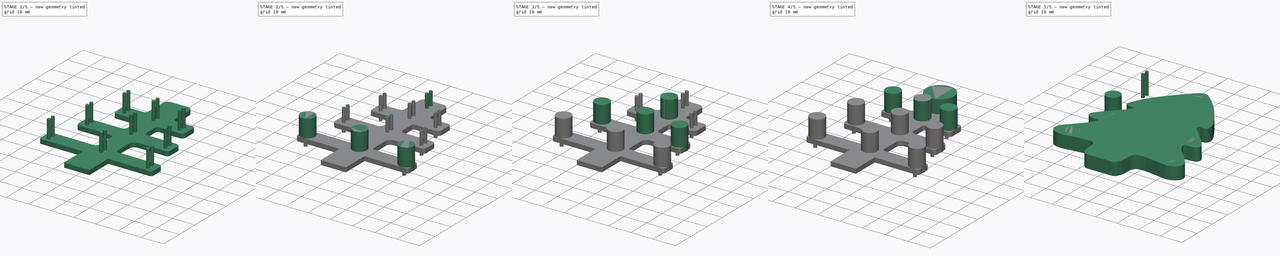
[diagram: build sequence overview — one tinted view per stage of 5, left to right]
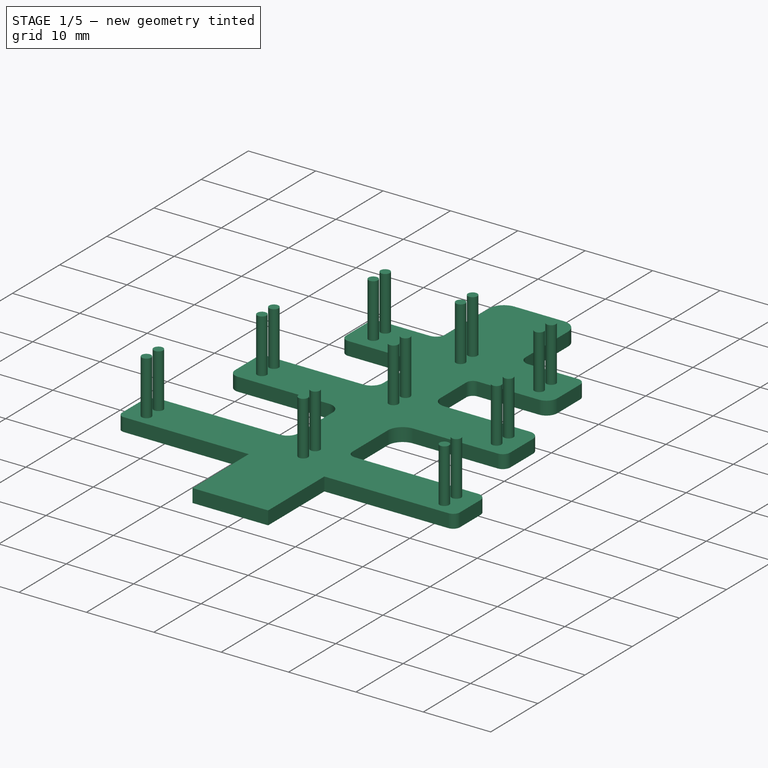
[diagram: stage 1 of 5 — iso view after this stage's code; geometry added in this stage tinted green]
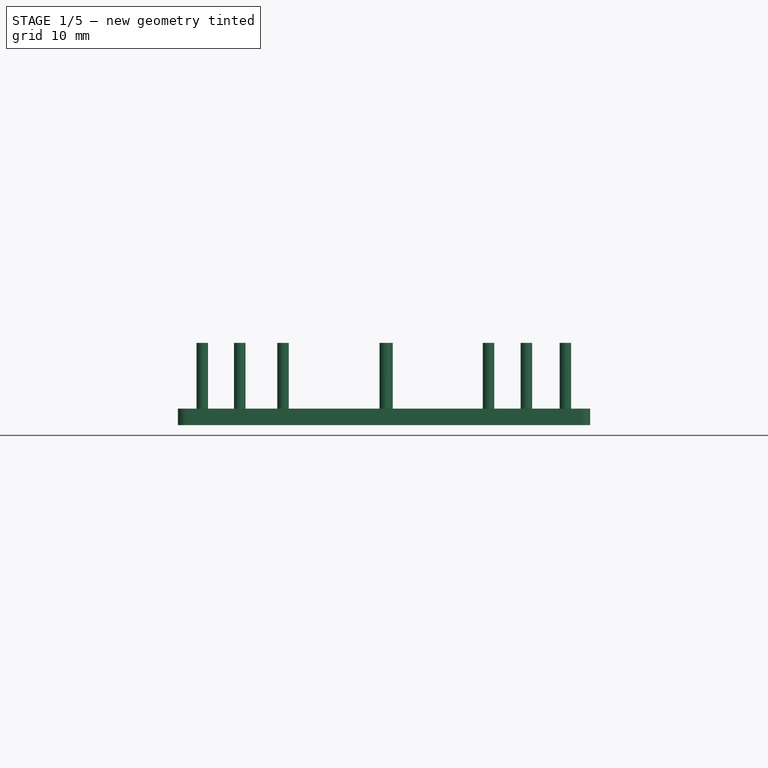
[diagram: stage 1 of 5 — front view after this stage's code; geometry added in this stage tinted green]
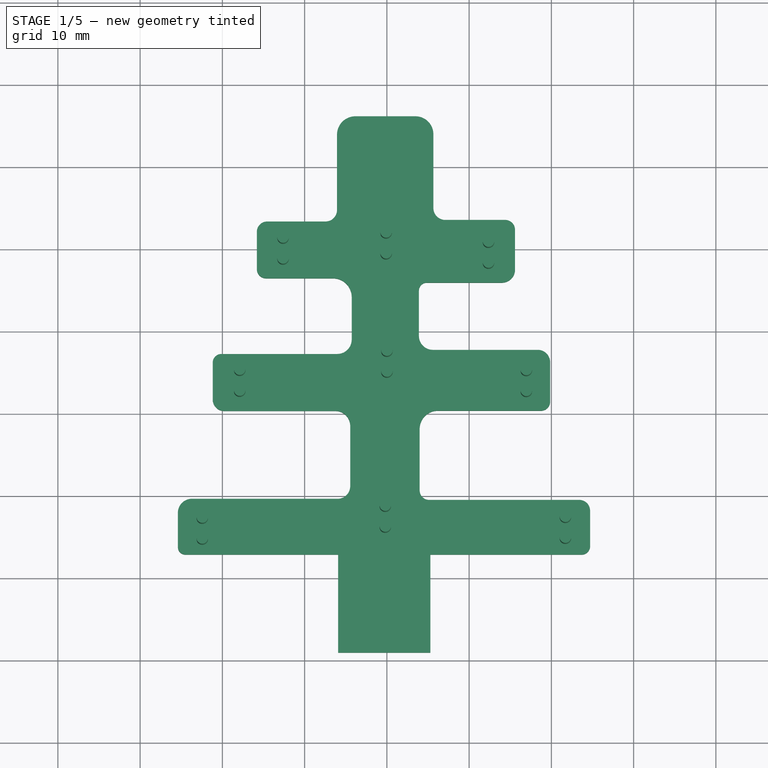
[diagram: stage 1 of 5 — top view after this stage's code; geometry added in this stage tinted green]
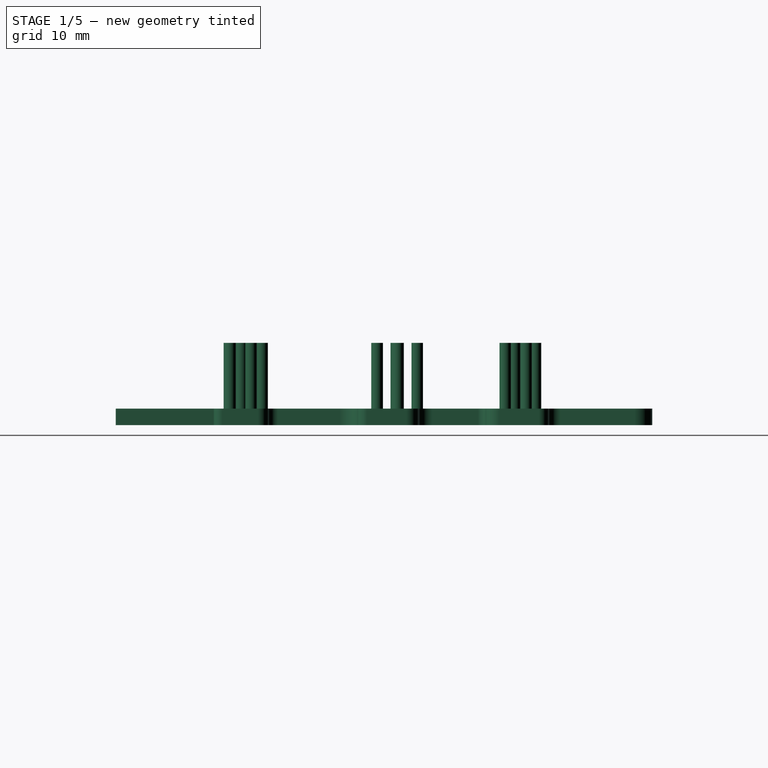
[diagram: stage 1 of 5 — right view after this stage's code; geometry added in this stage tinted green]
FCSTD DOCUMENT  (FreeCAD 0.15R4671 (Git))
Label: xmasTree_v0-2
License: All rights reserved
LicenseURL: http://en.wikipedia.org/wiki/All_rights_reserved
objects: Part::Extrusion×35, Sketcher::SketchObject×24, Part::MultiFuse×13, Part::Cut×3, Part::Feature×2, PartDesign::Pad×1
note: 79 computed .brp shape members not serialized (recipe doc carries the construction recipe); baked Part::Feature solids carry a one-line shape summary decoded from their .brp

FEATURE [Sketcher::SketchObject] Sketch025  label="Hole_Sketch002"
  Placement = pos=(-24,0,0) rot=(0,0,1;0rad)
  sketch-geometry (3):
    g0: Circle CenterX=29.1596 CenterY=67.9117 CenterZ=0 NormalX=0 NormalY=0 NormalZ=1 Radius=0.7
    g1: Circle CenterX=29.1596 CenterY=65.3717 CenterZ=0 NormalX=0 NormalY=0 NormalZ=1 Radius=0.7
    g2: LineSegment [constr] StartX=29.1596 StartY=68.4121 StartZ=0 EndX=29.1596 EndY=65.287 EndZ=0
  constraints (6):
    c: Radius(g0) = 0.7
    c: Equal(g0,g1)
    c: Vertical(g2)
    c: DistanceY(g1,g0) = 2.54
    c: PointOnObject(g0,g2)
    c: PointOnObject(g1,g2)
FEATURE [Part::Extrusion] Extrude026  label="Hole_002"
  Base = -> Sketch025
  Dir = (0,0,10)
  Placement = pos=(12.22,-16.55,0) rot=(0,0,1;0rad)
  Solid = true
FEATURE [Sketcher::SketchObject] Sketch026  label="Hole_Sketch003"
  Placement = pos=(-24,0,0) rot=(0,0,1;0rad)
  sketch-geometry (3):
    g0: Circle CenterX=29.1596 CenterY=67.9117 CenterZ=0 NormalX=0 NormalY=0 NormalZ=1 Radius=0.7
    g1: Circle CenterX=29.1596 CenterY=65.3717 CenterZ=0 NormalX=0 NormalY=0 NormalZ=1 Radius=0.7
    g2: LineSegment [constr] StartX=29.1596 StartY=68.4121 StartZ=0 EndX=29.1596 EndY=65.287 EndZ=0
  constraints (6):
    c: Radius(g0) = 0.7
    c: Equal(g0,g1)
    c: Vertical(g2)
    c: DistanceY(g1,g0) = 2.54
    c: PointOnObject(g0,g2)
    c: PointOnObject(g1,g2)
FEATURE [Part::Extrusion] Extrude027  label="Hole_003"
  Base = -> Sketch026
  Dir = (0,0,10)
  Placement = pos=(24.75,-15.92,0) rot=(0,0,1;0rad)
  Solid = true
FEATURE [Sketcher::SketchObject] Sketch027  label="Hole_Sketch004"
  Placement = pos=(-24,0,0) rot=(0,0,1;0rad)
  sketch-geometry (3):
    g0: Circle CenterX=29.1596 CenterY=67.9117 CenterZ=0 NormalX=0 NormalY=0 NormalZ=1 Radius=0.7
    g1: Circle CenterX=29.1596 CenterY=65.3717 CenterZ=0 NormalX=0 NormalY=0 NormalZ=1 Radius=0.7
    g2: LineSegment [constr] StartX=29.1596 StartY=68.4121 StartZ=0 EndX=29.1596 EndY=65.287 EndZ=0
  constraints (6):
    c: Radius(g0) = 0.7
    c: Equal(g0,g1)
    c: Vertical(g2)
    c: DistanceY(g1,g0) = 2.54
    c: PointOnObject(g0,g2)
    c: PointOnObject(g1,g2)
FEATURE [Part::Extrusion] Extrude028  label="Hole_004"
  Base = -> Sketch027
  Dir = (0,0,10)
  Placement = pos=(37.2,-17.05,0) rot=(0,0,1;0rad)
  Solid = true
FEATURE [Sketcher::SketchObject] Sketch028  label="Hole_Sketch005"
  Placement = pos=(-24,0,0) rot=(0,0,1;0rad)
  sketch-geometry (3):
    g0: Circle CenterX=29.1596 CenterY=67.9117 CenterZ=0 NormalX=0 NormalY=0 NormalZ=1 Radius=0.7
    g1: Circle CenterX=29.1596 CenterY=65.3717 CenterZ=0 NormalX=0 NormalY=0 NormalZ=1 Radius=0.7
    g2: LineSegment [constr] StartX=29.1596 StartY=68.4121 StartZ=0 EndX=29.1596 EndY=65.287 EndZ=0
  constraints (6):
    c: Radius(g0) = 0.7
    c: Equal(g0,g1)
    c: Vertical(g2)
    c: DistanceY(g1,g0) = 2.54
    c: PointOnObject(g0,g2)
    c: PointOnObject(g1,g2)
FEATURE [Part::Extrusion] Extrude029  label="Hole_005"
  Base = -> Sketch028
  Dir = (0,0,10)
  Placement = pos=(6.95,-32.62,0) rot=(0,0,1;0rad)
  Solid = true
FEATURE [Sketcher::SketchObject] Sketch029  label="Hole_Sketch006"
  Placement = pos=(-24,0,0) rot=(0,0,1;0rad)
  sketch-geometry (3):
    g0: Circle CenterX=29.1596 CenterY=67.9117 CenterZ=0 NormalX=0 NormalY=0 NormalZ=1 Radius=0.7
    g1: Circle CenterX=29.1596 CenterY=65.3717 CenterZ=0 NormalX=0 NormalY=0 NormalZ=1 Radius=0.7
    g2: LineSegment [constr] StartX=29.1596 StartY=68.4121 StartZ=0 EndX=29.1596 EndY=65.287 EndZ=0
  constraints (6):
    c: Radius(g0) = 0.7
    c: Equal(g0,g1)
    c: Vertical(g2)
    c: DistanceY(g1,g0) = 2.54
    c: PointOnObject(g0,g2)
    c: PointOnObject(g1,g2)
FEATURE [Part::Extrusion] Extrude030  label="Hole_006"
  Base = -> Sketch029
  Dir = (0,0,10)
  Placement = pos=(24.85,-30.3,0) rot=(0,0,1;0rad)
  Solid = true
FEATURE [Sketcher::SketchObject] Sketch030  label="Hole_Sketch007"
  Placement = pos=(-24,0,0) rot=(0,0,1;0rad)
  sketch-geometry (3):
    g0: Circle CenterX=29.1596 CenterY=67.9117 CenterZ=0 NormalX=0 NormalY=0 NormalZ=1 Radius=0.7
    g1: Circle CenterX=29.1596 CenterY=65.3717 CenterZ=0 NormalX=0 NormalY=0 NormalZ=1 Radius=0.7
    g2: LineSegment [constr] StartX=29.1596 StartY=68.4121 StartZ=0 EndX=29.1596 EndY=65.287 EndZ=0
  constraints (6):
    c: Radius(g0) = 0.7
    c: Equal(g0,g1)
    c: Vertical(g2)
    c: DistanceY(g1,g0) = 2.54
    c: PointOnObject(g0,g2)
    c: PointOnObject(g1,g2)
FEATURE [Part::Extrusion] Extrude031  label="Hole_007"
  Base = -> Sketch030
  Dir = (0,0,10)
  Placement = pos=(41.8,-32.65,0) rot=(0,0,1;0rad)
  Solid = true
FEATURE [Sketcher::SketchObject] Sketch031  label="Hole_Sketch008"
  Placement = pos=(-24,0,0) rot=(0,0,1;0rad)
  sketch-geometry (3):
    g0: Circle CenterX=29.1596 CenterY=67.9117 CenterZ=0 NormalX=0 NormalY=0 NormalZ=1 Radius=0.7
    g1: Circle CenterX=29.1596 CenterY=65.3717 CenterZ=0 NormalX=0 NormalY=0 NormalZ=1 Radius=0.7
    g2: LineSegment [constr] StartX=29.1596 StartY=68.4121 StartZ=0 EndX=29.1596 EndY=65.287 EndZ=0
  constraints (6):
    c: Radius(g0) = 0.7
    c: Equal(g0,g1)
    c: Vertical(g2)
    c: DistanceY(g1,g0) = 2.54
    c: PointOnObject(g0,g2)
    c: PointOnObject(g1,g2)
FEATURE [Part::Extrusion] Extrude032  label="Hole_008"
  Base = -> Sketch031
  Dir = (0,0,10)
  Placement = pos=(2.4,-50.6,0) rot=(0,0,1;0rad)
  Solid = true
FEATURE [Sketcher::SketchObject] Sketch032  label="Hole_Sketch009"
  Placement = pos=(-24,0,0) rot=(0,0,1;0rad)
  sketch-geometry (3):
    g0: Circle CenterX=29.1596 CenterY=67.9117 CenterZ=0 NormalX=0 NormalY=0 NormalZ=1 Radius=0.7
    g1: Circle CenterX=29.1596 CenterY=65.3717 CenterZ=0 NormalX=0 NormalY=0 NormalZ=1 Radius=0.7
    g2: LineSegment [constr] StartX=29.1596 StartY=68.4121 StartZ=0 EndX=29.1596 EndY=65.287 EndZ=0
  constraints (6):
    c: Radius(g0) = 0.7
    c: Equal(g0,g1)
    c: Vertical(g2)
    c: DistanceY(g1,g0) = 2.54
    c: PointOnObject(g0,g2)
    c: PointOnObject(g1,g2)
FEATURE [Part::Extrusion] Extrude033  label="Hole_009"
  Base = -> Sketch032
  Dir = (0,0,10)
  Placement = pos=(24.65,-49.15,0) rot=(0,0,1;0rad)
  Solid = true
FEATURE [Sketcher::SketchObject] Sketch033  label="Hole_Sketch010"
  Placement = pos=(-24,0,0) rot=(0,0,1;0rad)
  sketch-geometry (3):
    g0: Circle CenterX=29.1596 CenterY=67.9117 CenterZ=0 NormalX=0 NormalY=0 NormalZ=1 Radius=0.7
    g1: Circle CenterX=29.1596 CenterY=65.3717 CenterZ=0 NormalX=0 NormalY=0 NormalZ=1 Radius=0.7
    g2: LineSegment [constr] StartX=29.1596 StartY=68.4121 StartZ=0 EndX=29.1596 EndY=65.287 EndZ=0
  constraints (6):
    c: Radius(g0) = 0.7
    c: Equal(g0,g1)
    c: Vertical(g2)
    c: DistanceY(g1,g0) = 2.54
    c: PointOnObject(g0,g2)
    c: PointOnObject(g1,g2)
FEATURE [Part::Extrusion] Extrude034  label="Hole_010"
  Base = -> Sketch033
  Dir = (0,0,10)
  Placement = pos=(46.55,-50.5,0) rot=(0,0,1;0rad)
  Solid = true
FEATURE [Sketcher::SketchObject] Sketch034  label="Channels-Sketch"
  sketch-geometry (59):
    g0: LineSegment StartX=26.1749 StartY=66.1849 StartZ=0 EndX=33.4814 EndY=66.1849 EndZ=0
    g1: LineSegment StartX=35.654 StartY=64.0124 StartZ=0 EndX=35.654 EndY=58.2006 EndZ=0
    g2: LineSegment StartX=23.9403 StartY=58.356 StartZ=0 EndX=23.9403 EndY=63.9503 EndZ=0
    g3: LineSegment StartX=45.5853 StartY=52.3862 StartZ=0 EndX=45.5853 EndY=47.5555 EndZ=0
    g4: LineSegment StartX=14.1893 StartY=47.6088 StartZ=0 EndX=14.1893 EndY=52.1219 EndZ=0
    g5: LineSegment StartX=49.8535 StartY=36.2721 StartZ=0 EndX=49.8535 EndY=31.4914 EndZ=0
    g6: LineSegment StartX=8.82811 StartY=31.753 StartZ=0 EndX=8.82811 EndY=36.2292 EndZ=0
    g7: LineSegment StartX=54.7112 StartY=18.2239 StartZ=0 EndX=54.7112 EndY=13.9036 EndZ=0
    g8: LineSegment StartX=53.6896 StartY=12.882 StartZ=0 EndX=5.52722 EndY=12.882 EndZ=0
    g9: LineSegment StartX=4.59444 StartY=13.8148 StartZ=0 EndX=4.59444 EndY=17.9805 EndZ=0
    g10: LineSegment StartX=33.7757 StartY=12.882 StartZ=0 EndX=26.3841 EndY=12.882 EndZ=0
    g11: GeomPoint [constr] X=23.962 Y=53.3857 Z=0
    g12: GeomPoint [constr] X=35.3057 Y=52.8433 Z=0
    g13: GeomPoint [constr] X=25.7277 Y=37.2774 Z=0
    g14: GeomPoint [constr] X=33.1808 Y=37.4973 Z=0
    g15: GeomPoint [constr] X=25.7277 Y=37.2774 Z=0
    g16: LineSegment StartX=15.3164 StartY=46.4818 StartZ=0 EndX=23.4544 EndY=46.4818 EndZ=0
    g17: LineSegment StartX=34.8625 StartY=45.9495 StartZ=0 EndX=43.9794 EndY=45.9495 EndZ=0
    g18: GeomPoint [constr] X=35.3057 Y=52.8433 Z=0
    g19: LineSegment StartX=35.654 StartY=58.2006 StartZ=0 EndX=35.654 EndY=55.0413 EndZ=0
    g20: LineSegment StartX=15.4586 StartY=53.3911 StartZ=0 EndX=22.5418 EndY=53.3911 EndZ=0
    g21: LineSegment StartX=23.9403 StartY=54.7896 StartZ=0 EndX=23.9403 EndY=58.356 EndZ=0
    g22: LineSegment StartX=37.1145 StartY=53.5809 StartZ=0 EndX=44.3907 EndY=53.5809 EndZ=0
    g23: LineSegment StartX=9.88207 StartY=37.2832 StartZ=0 EndX=23.975 EndY=37.2832 EndZ=0
    g24: LineSegment StartX=25.7261 StartY=44.21 StartZ=0 EndX=25.7261 EndY=39.0343 EndZ=0
    g25: LineSegment StartX=35.5892 StartY=37.7838 StartZ=0 EndX=48.3418 EndY=37.7838 EndZ=0
    g26: LineSegment StartX=33.8985 StartY=44.9855 StartZ=0 EndX=33.8985 EndY=39.4745 EndZ=0
    g27: LineSegment StartX=10.2291 StartY=30.352 StartZ=0 EndX=23.7333 EndY=30.352 EndZ=0
    g28: LineSegment StartX=36.207 StartY=30.3836 StartZ=0 EndX=48.7457 EndY=30.3836 EndZ=0
    g29: GeomPoint [constr] X=25.9175 Y=18.5864 Z=0
    g30: GeomPoint [constr] X=33.794 Y=18.5864 Z=0
    g31: LineSegment StartX=25.5468 StartY=28.5385 StartZ=0 EndX=25.5468 EndY=21.2092 EndZ=0
    g32: LineSegment StartX=33.9881 StartY=28.1646 StartZ=0 EndX=33.9881 EndY=20.6951 EndZ=0
    g33: LineSegment StartX=6.28484 StartY=19.6709 StartZ=0 EndX=24.0086 EndY=19.6709 EndZ=0
    g34: LineSegment StartX=35.1487 StartY=19.5345 StartZ=0 EndX=53.4006 EndY=19.5345 EndZ=0
    g35: ArcOfCircle CenterX=26.1749 CenterY=63.9503 CenterZ=0 NormalX=0 NormalY=0 NormalZ=1 Radius=2.23465 StartAngle=1.5708 EndAngle=3.14159
    g36: ArcOfCircle CenterX=33.4814 CenterY=64.0124 CenterZ=0 NormalX=0 NormalY=0 NormalZ=1 Radius=2.17259 StartAngle=0 EndAngle=1.5708
    g37: ArcOfCircle CenterX=22.5418 CenterY=54.7896 CenterZ=0 NormalX=0 NormalY=0 NormalZ=1 Radius=1.39849 StartAngle=4.71239 EndAngle=6.28319
    g38: ArcOfCircle CenterX=37.1145 CenterY=55.0413 CenterZ=0 NormalX=0 NormalY=0 NormalZ=1 Radius=1.46046 StartAngle=3.14159 EndAngle=4.71239
    g39: ArcOfCircle CenterX=44.3907 CenterY=52.3862 CenterZ=0 NormalX=0 NormalY=0 NormalZ=1 Radius=1.19468 StartAngle=0 EndAngle=1.5708
    g40: ArcOfCircle CenterX=43.9794 CenterY=47.5555 CenterZ=0 NormalX=0 NormalY=0 NormalZ=1 Radius=1.60597 StartAngle=4.71239 EndAngle=6.28319
    g41: ArcOfCircle CenterX=34.8625 CenterY=44.9855 CenterZ=0 NormalX=0 NormalY=0 NormalZ=1 Radius=0.964051 StartAngle=1.5708 EndAngle=3.14159
    g42: ArcOfCircle CenterX=23.4544 CenterY=44.21 CenterZ=0 NormalX=0 NormalY=0 NormalZ=1 Radius=2.27177 StartAngle=0 EndAngle=1.5708
    g43: ArcOfCircle CenterX=15.4586 CenterY=52.1219 CenterZ=0 NormalX=0 NormalY=0 NormalZ=1 Radius=1.26926 StartAngle=1.5708 EndAngle=3.14159
    g44: ArcOfCircle CenterX=15.3164 CenterY=47.6088 CenterZ=0 NormalX=0 NormalY=0 NormalZ=1 Radius=1.12705 StartAngle=3.14159 EndAngle=4.71239
    g45: ArcOfCircle CenterX=35.5892 CenterY=39.4745 CenterZ=0 NormalX=0 NormalY=0 NormalZ=1 Radius=1.69071 StartAngle=3.14159 EndAngle=4.71239
    g46: ArcOfCircle CenterX=23.975 CenterY=39.0343 CenterZ=0 NormalX=0 NormalY=0 NormalZ=1 Radius=1.75111 StartAngle=4.71239 EndAngle=6.28319
    g47: ArcOfCircle CenterX=9.88207 CenterY=36.2292 CenterZ=0 NormalX=0 NormalY=0 NormalZ=1 Radius=1.05397 StartAngle=1.5708 EndAngle=3.14159
    g48: ArcOfCircle CenterX=10.2291 CenterY=31.753 CenterZ=0 NormalX=0 NormalY=0 NormalZ=1 Radius=1.40095 StartAngle=3.14159 EndAngle=4.71239
    g49: ArcOfCircle CenterX=48.3418 CenterY=36.2721 CenterZ=0 NormalX=0 NormalY=0 NormalZ=1 Radius=1.51164 StartAngle=0 EndAngle=1.5708
    g50: ArcOfCircle CenterX=48.7457 CenterY=31.4914 CenterZ=0 NormalX=0 NormalY=0 NormalZ=1 Radius=1.10778 StartAngle=4.71239 EndAngle=6.28319
    g51: ArcOfCircle CenterX=36.207 CenterY=28.1646 CenterZ=0 NormalX=0 NormalY=0 NormalZ=1 Radius=2.21896 StartAngle=1.5708 EndAngle=3.14159
    g52: ArcOfCircle CenterX=23.7333 CenterY=28.5385 CenterZ=0 NormalX=0 NormalY=0 NormalZ=1 Radius=1.81351 StartAngle=0 EndAngle=1.5708
    g53: ArcOfCircle CenterX=35.1487 CenterY=20.6951 CenterZ=0 NormalX=0 NormalY=0 NormalZ=1 Radius=1.16061 StartAngle=3.14159 EndAngle=4.71239
    g54: ArcOfCircle CenterX=24.0086 CenterY=21.2092 CenterZ=0 NormalX=0 NormalY=0 NormalZ=1 Radius=1.5383 StartAngle=4.71239 EndAngle=6.28319
    g55: ArcOfCircle CenterX=6.28484 CenterY=17.9805 CenterZ=0 NormalX=0 NormalY=0 NormalZ=1 Radius=1.69041 StartAngle=1.5708 EndAngle=3.14159
    g56: ArcOfCircle CenterX=5.52722 CenterY=13.8148 CenterZ=0 NormalX=0 NormalY=0 NormalZ=1 Radius=0.932782 StartAngle=3.14159 EndAngle=4.71239
    g57: ArcOfCircle CenterX=53.4006 CenterY=18.2239 CenterZ=0 NormalX=0 NormalY=0 NormalZ=1 Radius=1.3106 StartAngle=0 EndAngle=1.5708
    g58: ArcOfCircle CenterX=53.6896 CenterY=13.9036 CenterZ=0 NormalX=0 NormalY=0 NormalZ=1 Radius=1.02157 StartAngle=4.71239 EndAngle=6.28319
  constraints (80):
    c: Horizontal(g0)
    c: Vertical(g1)
    c: Vertical(g2)
    c: Vertical(g3)
    c: Vertical(g4)
    c: Vertical(g5)
    c: Vertical(g6)
    c: Horizontal(g8)
    c: Vertical(g7)
    c: Vertical(g9)
    c: Horizontal(g10)
    c: PointOnObject(g10,g8)
    c: Coincident(g13,g15)
    c: Horizontal(g16)
    c: Horizontal(g17)
    c: Vertical(g19)
    c: Coincident(g12,g18)
    c: Horizontal(g20)
    c: Vertical(g21)
    c: Horizontal(g22)
    c: Horizontal(g23)
    c: Vertical(g24)
    c: Horizontal(g25)
    c: Vertical(g26)
    c: Horizontal(g27)
    c: Horizontal(g28)
    c: Vertical(g31)
    c: Vertical(g32)
    c: Horizontal(g33)
    c: Horizontal(g34)
    c: Coincident(g2,g21)
    c: Coincident(g1,g19)
    c: Tangent(g0,g35) = 1.5708
    c: Tangent(g2,g35) = 1.5708
    c: Tangent(g0,g36) = 1.5708
    c: Tangent(g1,g36) = 1.5708
    c: Tangent(g21,g37) = -1.5708
    c: Tangent(g20,g37) = -1.5708
    c: Tangent(g19,g38) = -1.5708
    c: Tangent(g22,g38) = -1.5708
    c: Tangent(g22,g39) = 1.5708
    c: Tangent(g3,g39) = 1.5708
    c: Tangent(g3,g40) = 1.5708
    c: Tangent(g17,g40) = -1.5708
    c: Tangent(g17,g41) = 1.5708
    c: Tangent(g26,g41) = -1.5708
    c: Tangent(g16,g42) = 1.5708
    c: Tangent(g24,g42) = 1.5708
    c: Tangent(g20,g43) = 1.5708
    c: Tangent(g4,g43) = 1.5708
    c: Tangent(g4,g44) = 1.5708
    c: Tangent(g16,g44) = -1.5708
    c: Tangent(g26,g45) = -1.5708
    c: Tangent(g25,g45) = -1.5708
    c: Tangent(g24,g46) = 1.5708
    c: Tangent(g23,g46) = -1.5708
    c: Tangent(g23,g47) = 1.5708
    c: Tangent(g6,g47) = 1.5708
    c: Tangent(g27,g48) = -1.5708
    c: Tangent(g6,g48) = 1.5708
    c: Tangent(g25,g49) = 1.5708
    c: Tangent(g5,g49) = 1.5708
    c: Tangent(g5,g50) = 1.5708
    c: Tangent(g28,g50) = -1.5708
    c: Tangent(g28,g51) = 1.5708
    c: Tangent(g32,g51) = -1.5708
    c: Tangent(g27,g52) = 1.5708
    c: Tangent(g31,g52) = 1.5708
    c: Tangent(g32,g53) = -1.5708
    c: Tangent(g34,g53) = -1.5708
    c: Tangent(g31,g54) = 1.5708
    c: Tangent(g33,g54) = -1.5708
    c: Tangent(g33,g55) = 1.5708
    c: Tangent(g9,g55) = 1.5708
    c: Tangent(g9,g56) = 1.5708
    c: Tangent(g8,g56) = 1.5708
    c: Tangent(g34,g57) = 1.5708
    c: Tangent(g7,g57) = 1.5708
    c: Tangent(g8,g58) = 1.5708
    c: Tangent(g7,g58) = 1.5708
FEATURE [Part::Feature] Part__Feature  label="Cut006"
  shape: bbox 60.51 x 70.78 x 5.9 mm, 122 faces (baked)
FEATURE [Sketcher::SketchObject] Sketch035  label="Channels-Sketch001"
  sketch-geometry (62):
    g0: LineSegment StartX=26.1749 StartY=66.1849 StartZ=0 EndX=33.4814 EndY=66.1849 EndZ=0
    g1: LineSegment StartX=35.654 StartY=64.0124 StartZ=0 EndX=35.654 EndY=58.2006 EndZ=0
    g2: LineSegment StartX=23.9403 StartY=58.356 StartZ=0 EndX=23.9403 EndY=63.9503 EndZ=0
    g3: LineSegment StartX=45.5853 StartY=52.3862 StartZ=0 EndX=45.5853 EndY=47.5555 EndZ=0
    g4: LineSegment StartX=14.1893 StartY=47.6088 StartZ=0 EndX=14.1893 EndY=52.1219 EndZ=0
    g5: LineSegment StartX=49.8535 StartY=36.2721 StartZ=0 EndX=49.8535 EndY=31.4914 EndZ=0
    g6: LineSegment StartX=8.82811 StartY=31.753 StartZ=0 EndX=8.82811 EndY=36.2292 EndZ=0
    g7: LineSegment StartX=54.7112 StartY=18.2239 StartZ=0 EndX=54.7112 EndY=13.9036 EndZ=0
    g8: LineSegment StartX=4.59444 StartY=13.8148 StartZ=0 EndX=4.59444 EndY=17.9805 EndZ=0
    g9: GeomPoint [constr] X=23.962 Y=53.3857 Z=0
    g10: GeomPoint [constr] X=35.3057 Y=52.8433 Z=0
    g11: GeomPoint [constr] X=25.7277 Y=37.2774 Z=0
    g12: GeomPoint [constr] X=33.1808 Y=37.4973 Z=0
    g13: GeomPoint [constr] X=25.7277 Y=37.2774 Z=0
    g14: LineSegment StartX=15.3164 StartY=46.4818 StartZ=0 EndX=23.4544 EndY=46.4818 EndZ=0
    g15: LineSegment StartX=34.8625 StartY=45.9495 StartZ=0 EndX=43.9794 EndY=45.9495 EndZ=0
    g16: GeomPoint [constr] X=35.3057 Y=52.8433 Z=0
    g17: LineSegment StartX=35.654 StartY=58.2006 StartZ=0 EndX=35.654 EndY=55.0413 EndZ=0
    g18: LineSegment StartX=15.4586 StartY=53.3911 StartZ=0 EndX=22.5418 EndY=53.3911 EndZ=0
    g19: LineSegment StartX=23.9403 StartY=54.7896 StartZ=0 EndX=23.9403 EndY=58.356 EndZ=0
    g20: LineSegment StartX=37.1145 StartY=53.5809 StartZ=0 EndX=44.3907 EndY=53.5809 EndZ=0
    g21: LineSegment StartX=9.88207 StartY=37.2832 StartZ=0 EndX=23.975 EndY=37.2832 EndZ=0
    g22: LineSegment StartX=25.7261 StartY=44.21 StartZ=0 EndX=25.7261 EndY=39.0343 EndZ=0
    g23: LineSegment StartX=35.5892 StartY=37.7838 StartZ=0 EndX=48.3418 EndY=37.7838 EndZ=0
    g24: LineSegment StartX=33.8985 StartY=44.9855 StartZ=0 EndX=33.8985 EndY=39.4745 EndZ=0
    g25: LineSegment StartX=10.2291 StartY=30.352 StartZ=0 EndX=23.7333 EndY=30.352 EndZ=0
    g26: LineSegment StartX=36.207 StartY=30.3836 StartZ=0 EndX=48.7457 EndY=30.3836 EndZ=0
    g27: GeomPoint [constr] X=25.9175 Y=18.5864 Z=0
    g28: GeomPoint [constr] X=33.794 Y=18.5864 Z=0
    g29: LineSegment StartX=25.5468 StartY=28.5385 StartZ=0 EndX=25.5468 EndY=21.2092 EndZ=0
    g30: LineSegment StartX=33.9881 StartY=28.1646 StartZ=0 EndX=33.9881 EndY=20.6951 EndZ=0
    g31: LineSegment StartX=6.28484 StartY=19.6709 StartZ=0 EndX=24.0086 EndY=19.6709 EndZ=0
    g32: LineSegment StartX=35.1487 StartY=19.5345 StartZ=0 EndX=53.4006 EndY=19.5345 EndZ=0
    g33: ArcOfCircle CenterX=26.1749 CenterY=63.9503 CenterZ=0 NormalX=0 NormalY=0 NormalZ=1 Radius=2.23465 StartAngle=1.5708 EndAngle=3.14159
    g34: ArcOfCircle CenterX=33.4814 CenterY=64.0124 CenterZ=0 NormalX=0 NormalY=0 NormalZ=1 Radius=2.17259 StartAngle=0 EndAngle=1.5708
    g35: ArcOfCircle CenterX=22.5418 CenterY=54.7896 CenterZ=0 NormalX=0 NormalY=0 NormalZ=1 Radius=1.39849 StartAngle=4.71239 EndAngle=6.28319
    g36: ArcOfCircle CenterX=37.1145 CenterY=55.0413 CenterZ=0 NormalX=0 NormalY=0 NormalZ=1 Radius=1.46046 StartAngle=3.14159 EndAngle=4.71239
    g37: ArcOfCircle CenterX=44.3907 CenterY=52.3862 CenterZ=0 NormalX=0 NormalY=0 NormalZ=1 Radius=1.19468 StartAngle=0 EndAngle=1.5708
    g38: ArcOfCircle CenterX=43.9794 CenterY=47.5555 CenterZ=0 NormalX=0 NormalY=0 NormalZ=1 Radius=1.60597 StartAngle=4.71239 EndAngle=6.28319
    g39: ArcOfCircle CenterX=34.8625 CenterY=44.9855 CenterZ=0 NormalX=0 NormalY=0 NormalZ=1 Radius=0.964051 StartAngle=1.5708 EndAngle=3.14159
    g40: ArcOfCircle CenterX=23.4544 CenterY=44.21 CenterZ=0 NormalX=0 NormalY=0 NormalZ=1 Radius=2.27177 StartAngle=0 EndAngle=1.5708
    g41: ArcOfCircle CenterX=15.4586 CenterY=52.1219 CenterZ=0 NormalX=0 NormalY=0 NormalZ=1 Radius=1.26926 StartAngle=1.5708 EndAngle=3.14159
    g42: ArcOfCircle CenterX=15.3164 CenterY=47.6088 CenterZ=0 NormalX=0 NormalY=0 NormalZ=1 Radius=1.12705 StartAngle=3.14159 EndAngle=4.71239
    g43: ArcOfCircle CenterX=35.5892 CenterY=39.4745 CenterZ=0 NormalX=0 NormalY=0 NormalZ=1 Radius=1.69071 StartAngle=3.14159 EndAngle=4.71239
    g44: ArcOfCircle CenterX=23.975 CenterY=39.0343 CenterZ=0 NormalX=0 NormalY=0 NormalZ=1 Radius=1.75111 StartAngle=4.71239 EndAngle=6.28319
    g45: ArcOfCircle CenterX=9.88207 CenterY=36.2292 CenterZ=0 NormalX=0 NormalY=0 NormalZ=1 Radius=1.05397 StartAngle=1.5708 EndAngle=3.14159
    g46: ArcOfCircle CenterX=10.2291 CenterY=31.753 CenterZ=0 NormalX=0 NormalY=0 NormalZ=1 Radius=1.40095 StartAngle=3.14159 EndAngle=4.71239
    g47: ArcOfCircle CenterX=48.3418 CenterY=36.2721 CenterZ=0 NormalX=0 NormalY=0 NormalZ=1 Radius=1.51164 StartAngle=0 EndAngle=1.5708
    g48: ArcOfCircle CenterX=48.7457 CenterY=31.4914 CenterZ=0 NormalX=0 NormalY=0 NormalZ=1 Radius=1.10778 StartAngle=4.71239 EndAngle=6.28319
    g49: ArcOfCircle CenterX=36.207 CenterY=28.1646 CenterZ=0 NormalX=0 NormalY=0 NormalZ=1 Radius=2.21896 StartAngle=1.5708 EndAngle=3.14159
    g50: ArcOfCircle CenterX=23.7333 CenterY=28.5385 CenterZ=0 NormalX=0 NormalY=0 NormalZ=1 Radius=1.81351 StartAngle=0 EndAngle=1.5708
    g51: ArcOfCircle CenterX=35.1487 CenterY=20.6951 CenterZ=0 NormalX=0 NormalY=0 NormalZ=1 Radius=1.16061 StartAngle=3.14159 EndAngle=4.71239
    g52: ArcOfCircle CenterX=24.0086 CenterY=21.2092 CenterZ=0 NormalX=0 NormalY=0 NormalZ=1 Radius=1.5383 StartAngle=4.71239 EndAngle=6.28319
    g53: ArcOfCircle CenterX=6.28484 CenterY=17.9805 CenterZ=0 NormalX=0 NormalY=0 NormalZ=1 Radius=1.69041 StartAngle=1.5708 EndAngle=3.14159
    g54: ArcOfCircle CenterX=5.52722 CenterY=13.8148 CenterZ=0 NormalX=0 NormalY=0 NormalZ=1 Radius=0.932782 StartAngle=3.14159 EndAngle=4.71239
    g55: ArcOfCircle CenterX=53.4006 CenterY=18.2239 CenterZ=0 NormalX=0 NormalY=0 NormalZ=1 Radius=1.3106 StartAngle=0 EndAngle=1.5708
    g56: ArcOfCircle CenterX=53.6896 CenterY=13.9036 CenterZ=0 NormalX=0 NormalY=0 NormalZ=1 Radius=1.02157 StartAngle=4.71239 EndAngle=6.28319
    g57: LineSegment StartX=24.0707 StartY=0.965551 StartZ=0 EndX=35.2882 EndY=0.965551 EndZ=0
    g58: LineSegment StartX=35.2882 StartY=0.965551 StartZ=0 EndX=35.2882 EndY=12.882 EndZ=0
    g59: LineSegment StartX=24.0707 StartY=12.882 StartZ=0 EndX=24.0707 EndY=0.965551 EndZ=0
    g60: LineSegment StartX=24.0707 StartY=12.882 StartZ=0 EndX=5.52722 EndY=12.882 EndZ=0
    g61: LineSegment StartX=53.6896 StartY=12.882 StartZ=0 EndX=35.2882 EndY=12.882 EndZ=0
  constraints (85):
    c: Horizontal(g0)
    c: Vertical(g1)
    c: Vertical(g2)
    c: Vertical(g3)
    c: Vertical(g4)
    c: Vertical(g5)
    c: Vertical(g6)
    c: Vertical(g7)
    c: Vertical(g8)
    c: Coincident(g11,g13)
    c: Horizontal(g14)
    c: Horizontal(g15)
    c: Vertical(g17)
    c: Coincident(g10,g16)
    c: Horizontal(g18)
    c: Vertical(g19)
    c: Horizontal(g20)
    c: Horizontal(g21)
    c: Vertical(g22)
    c: Horizontal(g23)
    c: Vertical(g24)
    c: Horizontal(g25)
    c: Horizontal(g26)
    c: Vertical(g29)
    c: Vertical(g30)
    c: Horizontal(g31)
    c: Horizontal(g32)
    c: Coincident(g2,g19)
    c: Coincident(g1,g17)
    c: Tangent(g0,g33) = 1.5708
    c: Tangent(g2,g33) = 1.5708
    c: Tangent(g0,g34) = 1.5708
    c: Tangent(g1,g34) = 1.5708
    c: Tangent(g19,g35) = -1.5708
    c: Tangent(g18,g35) = -1.5708
    c: Tangent(g17,g36) = -1.5708
    c: Tangent(g20,g36) = -1.5708
    c: Tangent(g20,g37) = 1.5708
    c: Tangent(g3,g37) = 1.5708
    c: Tangent(g3,g38) = 1.5708
    c: Tangent(g15,g38) = -1.5708
    c: Tangent(g15,g39) = 1.5708
    c: Tangent(g24,g39) = -1.5708
    c: Tangent(g14,g40) = 1.5708
    c: Tangent(g22,g40) = 1.5708
    c: Tangent(g18,g41) = 1.5708
    c: Tangent(g4,g41) = 1.5708
    c: Tangent(g4,g42) = 1.5708
    c: Tangent(g14,g42) = -1.5708
    c: Tangent(g24,g43) = -1.5708
    c: Tangent(g23,g43) = -1.5708
    c: Tangent(g22,g44) = 1.5708
    c: Tangent(g21,g44) = -1.5708
    c: Tangent(g21,g45) = 1.5708
    c: Tangent(g6,g45) = 1.5708
    c: Tangent(g25,g46) = -1.5708
    c: Tangent(g6,g46) = 1.5708
    c: Tangent(g23,g47) = 1.5708
    c: Tangent(g5,g47) = 1.5708
    c: Tangent(g5,g48) = 1.5708
    c: Tangent(g26,g48) = -1.5708
    c: Tangent(g26,g49) = 1.5708
    c: Tangent(g30,g49) = -1.5708
    c: Tangent(g25,g50) = 1.5708
    c: Tangent(g29,g50) = 1.5708
    c: Tangent(g30,g51) = -1.5708
    c: Tangent(g32,g51) = -1.5708
    c: Tangent(g29,g52) = 1.5708
    c: Tangent(g31,g52) = -1.5708
    c: Tangent(g31,g53) = 1.5708
    c: Tangent(g8,g53) = 1.5708
    c: Tangent(g8,g54) = 1.5708
    c: Tangent(g32,g55) = 1.5708
    c: Tangent(g7,g55) = 1.5708
    c: Tangent(g7,g56) = 1.5708
    c: Coincident(g57,g58)
    c: Coincident(g59,g57)
    c: Horizontal(g57)
    c: Vertical(g58)
    c: Vertical(g59)
    c: Coincident(g60,g54)
    c: Horizontal(g60)
    c: Coincident(g61,g56)
    c: Coincident(g61,g58)
    c: Horizontal(g61)
FEATURE [PartDesign::Pad] Pad
  Length = 2
  Length2 = 100
  Sketch = -> Sketch035
  Type = 0
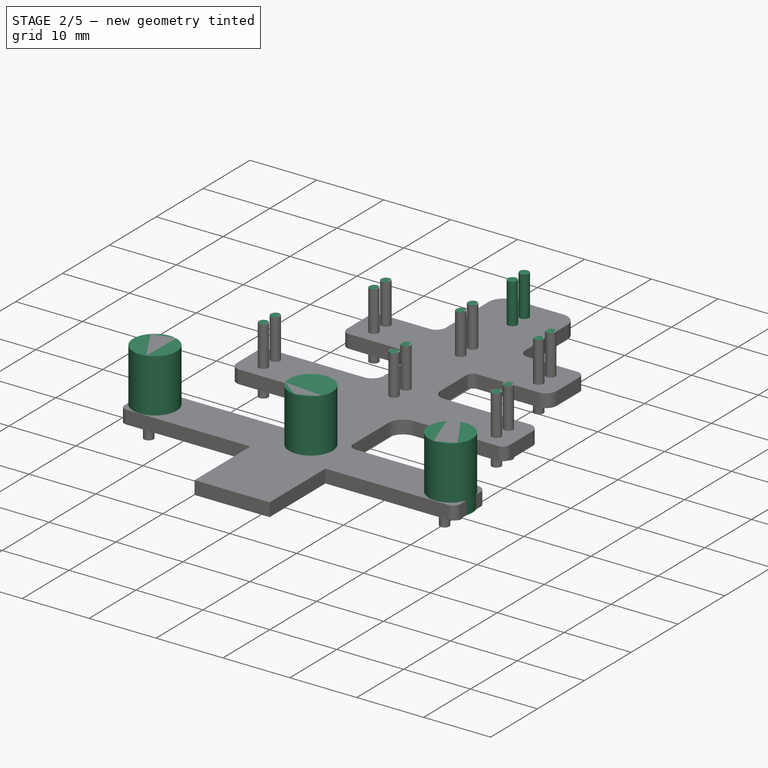
[diagram: stage 2 of 5 — iso view after this stage's code; geometry added in this stage tinted green]
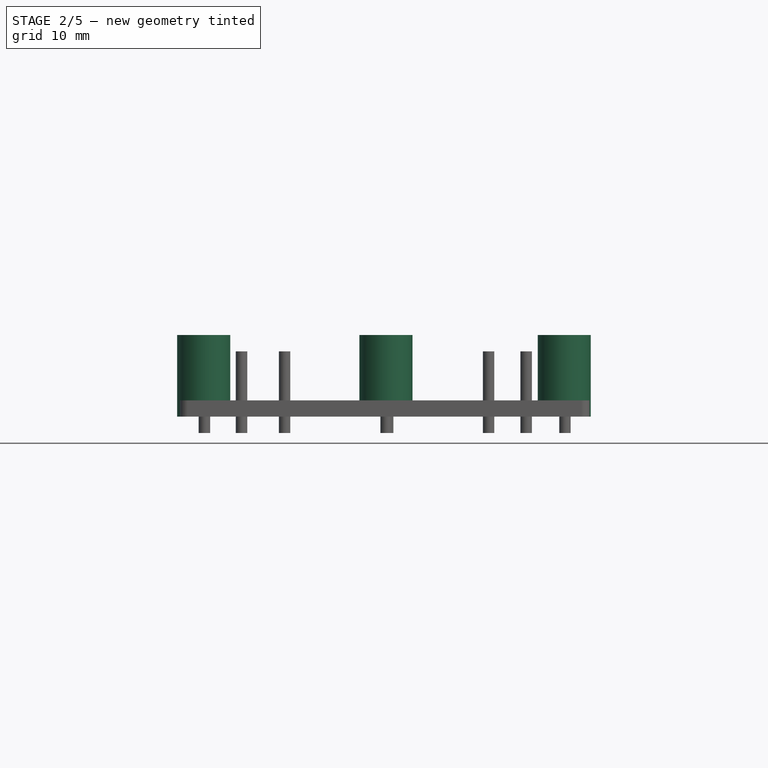
[diagram: stage 2 of 5 — front view after this stage's code; geometry added in this stage tinted green]
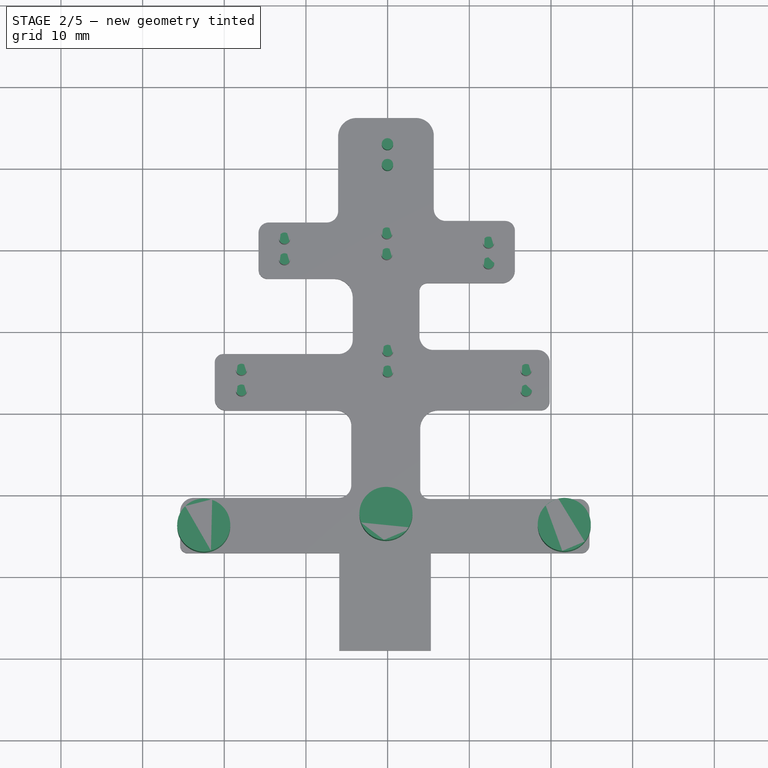
[diagram: stage 2 of 5 — top view after this stage's code; geometry added in this stage tinted green]
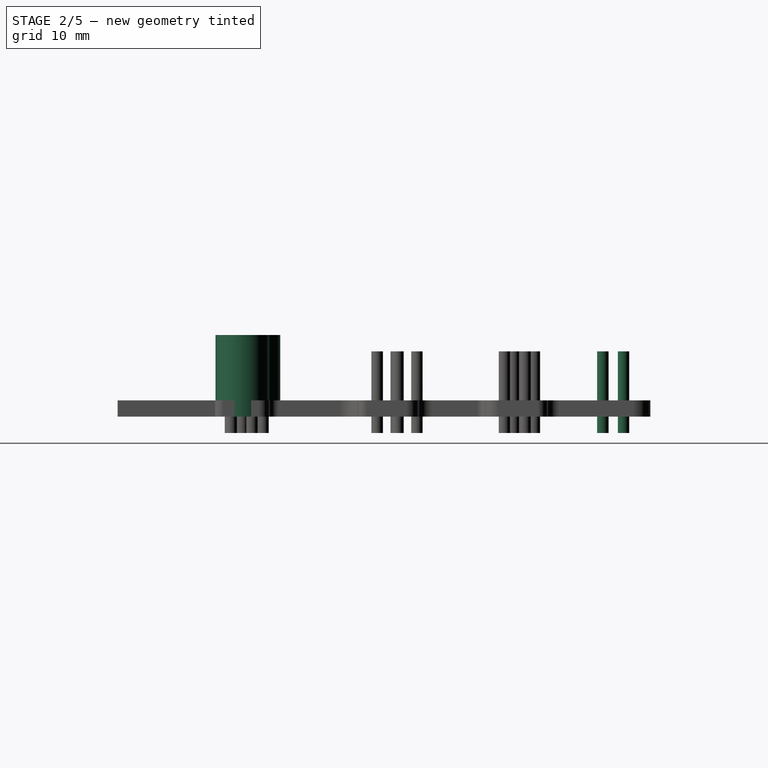
[diagram: stage 2 of 5 — right view after this stage's code; geometry added in this stage tinted green]
FEATURE [Part::Extrusion] Extrude016
  Base = -> Sketch008
  Dir = (0,0,10)
  Solid = true
FEATURE [Part::Extrusion] Extrude017
  Base = -> Sketch008
  Dir = (0,0,10)
  Solid = true
FEATURE [Part::MultiFuse] Fusion007  label="Led_08"
  Placement = pos=(-1,-9,0) rot=(0,0,1;0rad)
  Shapes = -> [Extrude016,Extrude017]
FEATURE [Part::Extrusion] Extrude018
  Base = -> Sketch009
  Dir = (0,0,10)
  Solid = true
FEATURE [Part::Extrusion] Extrude019
  Base = -> Sketch009
  Dir = (0,0,10)
  Solid = true
FEATURE [Part::MultiFuse] Fusion008  label="Led_09"
  Placement = pos=(1,0.7,0) rot=(0,0,1;0rad)
  Shapes = -> [Extrude018,Extrude019]
FEATURE [Part::Extrusion] Extrude020
  Base = -> Sketch010
  Dir = (0,0,10)
  Solid = true
FEATURE [Part::Extrusion] Extrude021
  Base = -> Sketch010
  Dir = (0,0,10)
  Solid = true
FEATURE [Part::MultiFuse] Fusion009  label="Led_10"
  Placement = pos=(-1,0.5,0) rot=(0,0,1;0rad)
  Shapes = -> [Extrude020,Extrude021]
FEATURE [Sketcher::SketchObject] Sketch024  label="Hole_Sketch001"
  Placement = pos=(-24,0,0) rot=(0,0,1;0rad)
  sketch-geometry (3):
    g0: Circle CenterX=29.1596 CenterY=67.9117 CenterZ=0 NormalX=0 NormalY=0 NormalZ=1 Radius=0.7
    g1: Circle CenterX=29.1596 CenterY=65.3717 CenterZ=0 NormalX=0 NormalY=0 NormalZ=1 Radius=0.7
    g2: LineSegment [constr] StartX=29.1596 StartY=68.4121 StartZ=0 EndX=29.1596 EndY=65.287 EndZ=0
  constraints (6):
    c: Radius(g0) = 0.7
    c: Equal(g0,g1)
    c: Vertical(g2)
    c: DistanceY(g1,g0) = 2.54
    c: PointOnObject(g0,g2)
    c: PointOnObject(g1,g2)
FEATURE [Part::Extrusion] Extrude025  label="Hole_001"
  Base = -> Sketch024
  Dir = (0,0,10)
  Placement = pos=(24.82,-5,0) rot=(0,0,1;0rad)
  Solid = true
FEATURE [Part::MultiFuse] Fusion012  label="All_Holes"
  Placement = pos=(0,0,-2) rot=(0,0,1;0rad)
  Shapes = -> [Extrude025,Extrude026,Extrude027,Extrude028,Extrude029,Extrude030,Extrude031,Extrude032,Extrude033,Extrude034]
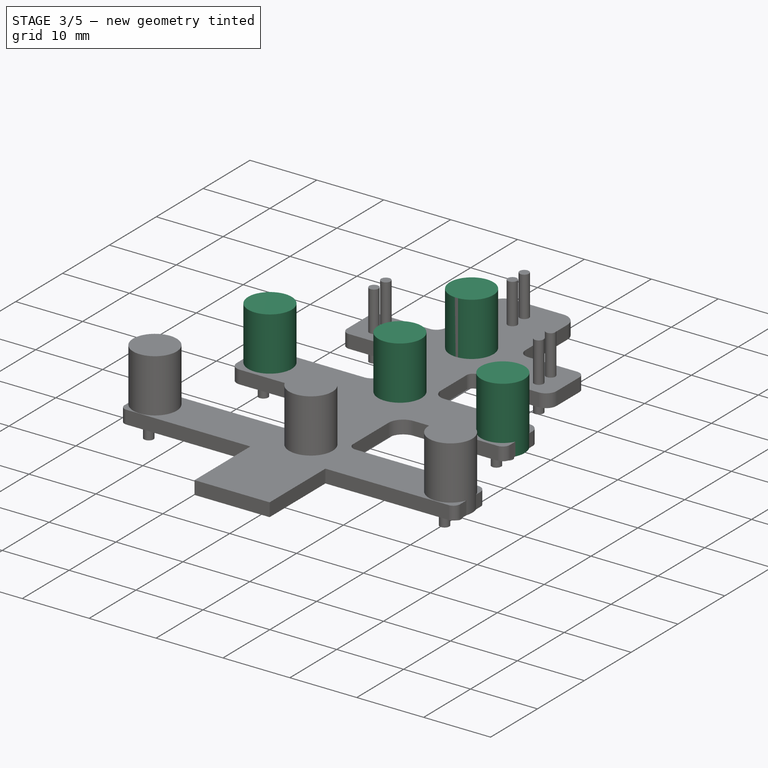
[diagram: stage 3 of 5 — iso view after this stage's code; geometry added in this stage tinted green]
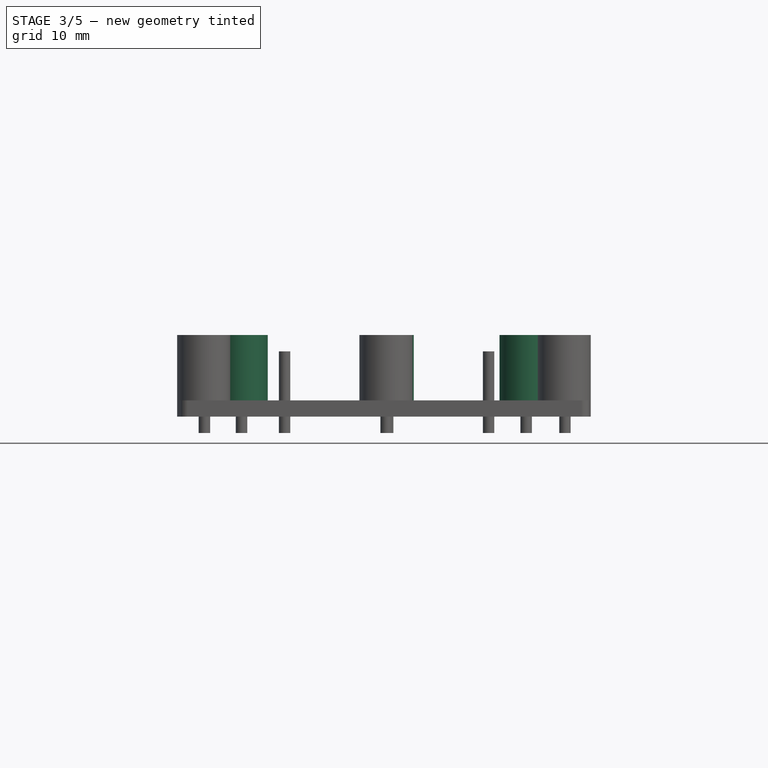
[diagram: stage 3 of 5 — front view after this stage's code; geometry added in this stage tinted green]
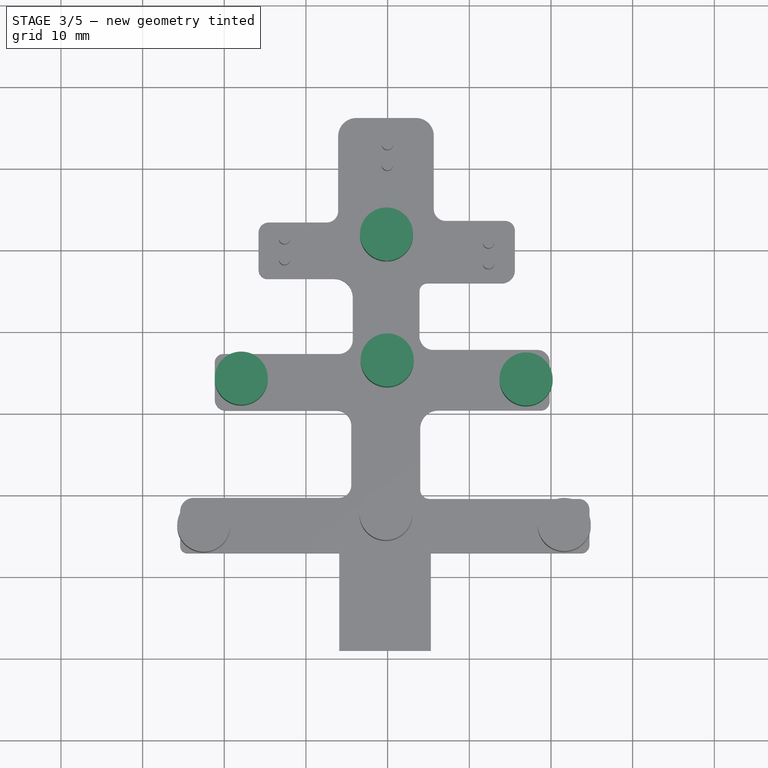
[diagram: stage 3 of 5 — top view after this stage's code; geometry added in this stage tinted green]
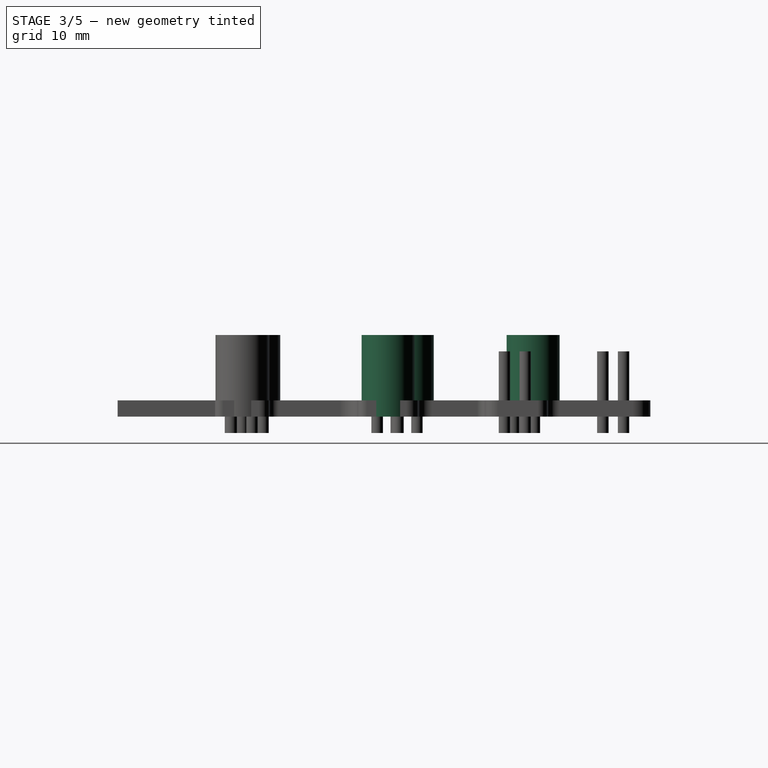
[diagram: stage 3 of 5 — right view after this stage's code; geometry added in this stage tinted green]
FEATURE [Part::Extrusion] Extrude009
  Base = -> Sketch004
  Dir = (0,0,10)
  Solid = true
FEATURE [Part::Extrusion] Extrude010
  Base = -> Sketch005
  Dir = (0,0,10)
  Solid = true
FEATURE [Part::Extrusion] Extrude011
  Base = -> Sketch005
  Dir = (0,0,10)
  Solid = true
FEATURE [Part::MultiFuse] Fusion004  label="Led_05"
  Placement = pos=(1,0.5,0) rot=(0,0,1;0rad)
  Shapes = -> [Extrude010,Extrude011]
FEATURE [Part::Extrusion] Extrude012
  Base = -> Sketch006
  Dir = (0,0,10)
  Solid = true
FEATURE [Part::Extrusion] Extrude013
  Base = -> Sketch006
  Dir = (0,0,10)
  Solid = true
FEATURE [Part::MultiFuse] Fusion005  label="Led_06"
  Placement = pos=(-0.2,-2,0) rot=(0,0,1;0rad)
  Shapes = -> [Extrude012,Extrude013]
FEATURE [Part::Extrusion] Extrude014
  Base = -> Sketch007
  Dir = (0,0,10)
  Solid = true
FEATURE [Part::Extrusion] Extrude015
  Base = -> Sketch007
  Dir = (0,0,10)
  Solid = true
FEATURE [Part::MultiFuse] Fusion006  label="Led_07"
  Placement = pos=(-1,0.2,0) rot=(0,0,1;0rad)
  Shapes = -> [Extrude014,Extrude015]
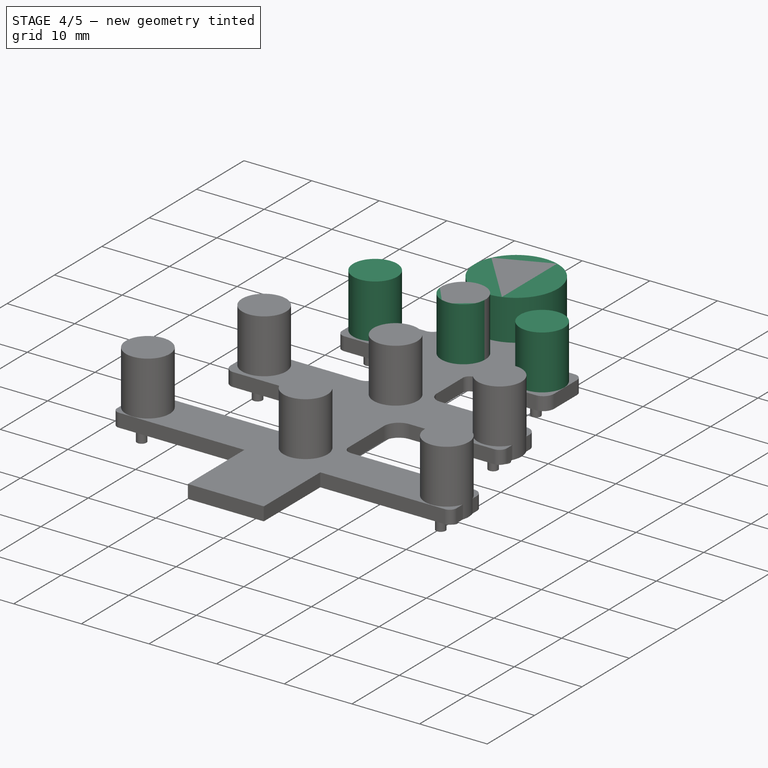
[diagram: stage 4 of 5 — iso view after this stage's code; geometry added in this stage tinted green]
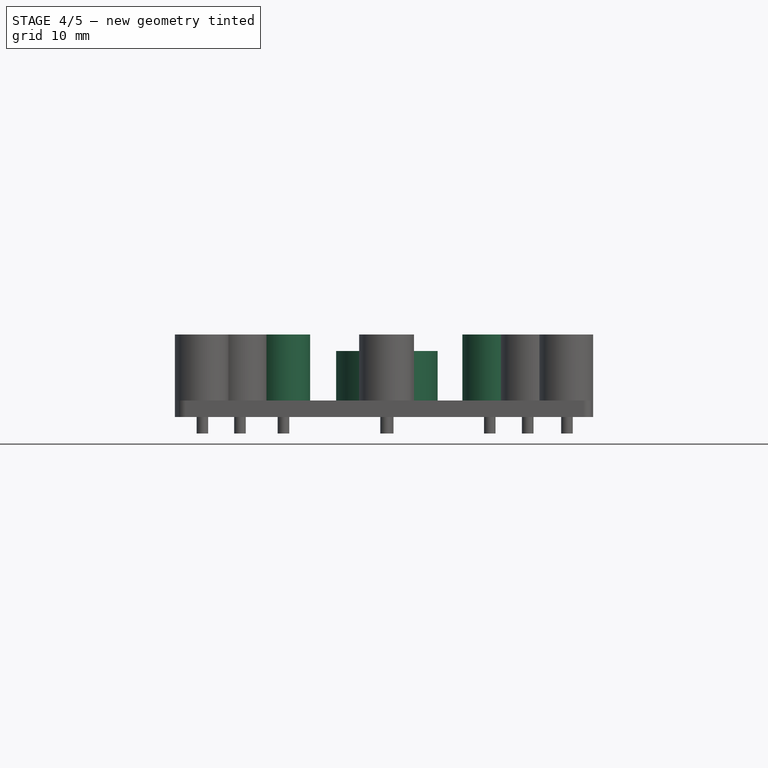
[diagram: stage 4 of 5 — front view after this stage's code; geometry added in this stage tinted green]
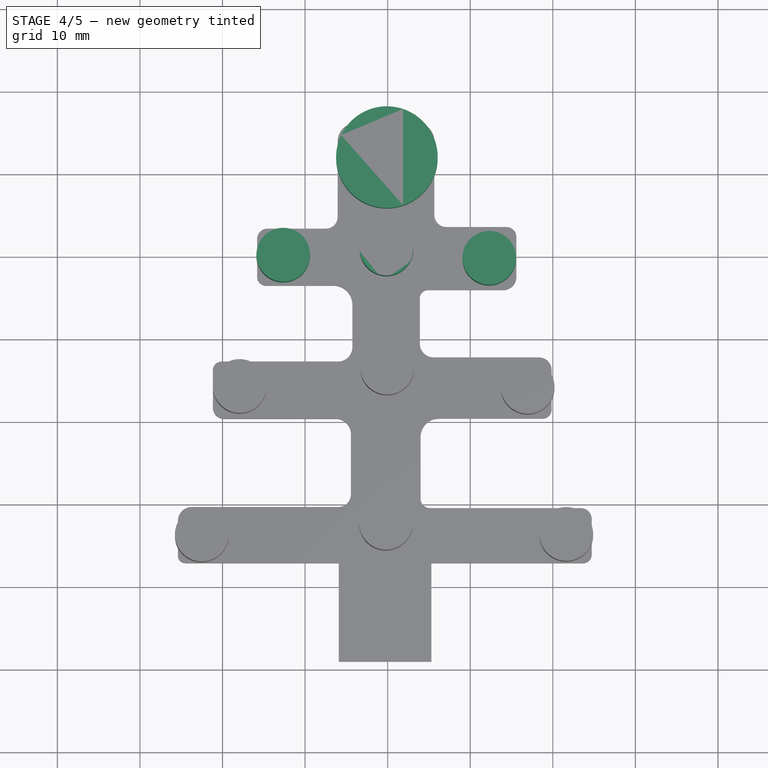
[diagram: stage 4 of 5 — top view after this stage's code; geometry added in this stage tinted green]
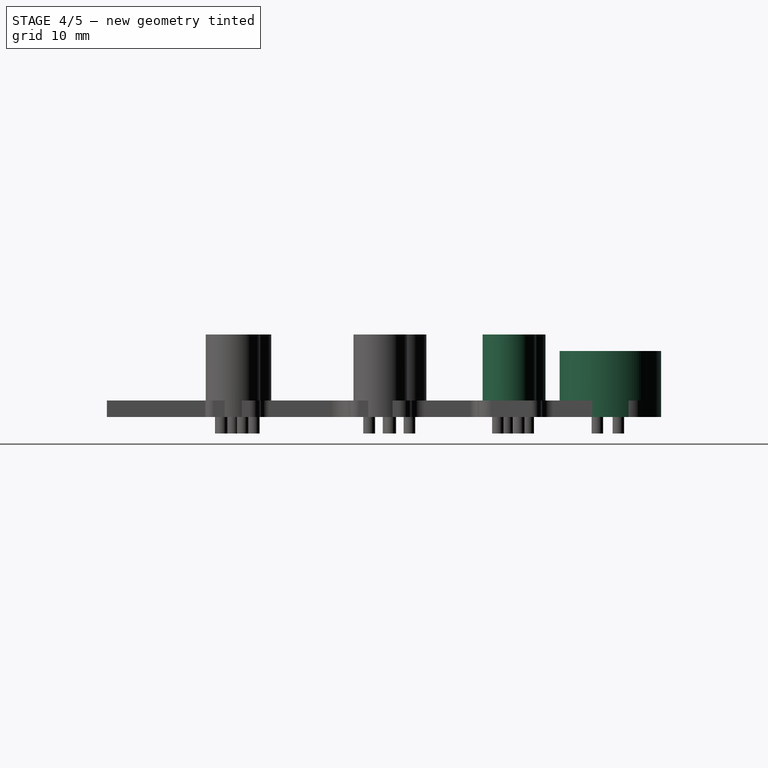
[diagram: stage 4 of 5 — right view after this stage's code; geometry added in this stage tinted green]
FEATURE [Sketcher::SketchObject] Sketch
  sketch-geometry (1):
    g0: Circle CenterX=6.50544 CenterY=43.7805 CenterZ=0 NormalX=0 NormalY=0 NormalZ=1 Radius=3.25
  constraints (1):
    c: Radius(g0) = 3.25
FEATURE [Sketcher::SketchObject] Sketch001
  sketch-geometry (1):
    g0: Circle CenterX=29.9077 CenterY=62.9463 CenterZ=0 NormalX=0 NormalY=0 NormalZ=1 Radius=6.15
  constraints (1):
    c: Radius(g0) = 6.15
FEATURE [Sketcher::SketchObject] Sketch002
  sketch-geometry (1):
    g0: Circle CenterX=16.3556 CenterY=50.0915 CenterZ=0 NormalX=0 NormalY=0 NormalZ=1 Radius=3.25
  constraints (1):
    c: Radius(g0) = 3.25
FEATURE [Sketcher::SketchObject] Sketch003
  sketch-geometry (1):
    g0: Circle CenterX=43.2991 CenterY=49.7164 CenterZ=0 NormalX=0 NormalY=0 NormalZ=1 Radius=3.25
  constraints (1):
    c: Radius(g0) = 3.25
FEATURE [Sketcher::SketchObject] Sketch004
  sketch-geometry (1):
    g0: Circle CenterX=29.864 CenterY=51.8364 CenterZ=0 NormalX=0 NormalY=0 NormalZ=1 Radius=3.25
  constraints (1):
    c: Radius(g0) = 3.25
FEATURE [Sketcher::SketchObject] Sketch005
  sketch-geometry (1):
    g0: Circle CenterX=11.0781 CenterY=33.692 CenterZ=0 NormalX=0 NormalY=0 NormalZ=1 Radius=3.25
  constraints (1):
    c: Radius(g0) = 3.25
FEATURE [Sketcher::SketchObject] Sketch006
  sketch-geometry (1):
    g0: Circle CenterX=30.1442 CenterY=38.4194 CenterZ=0 NormalX=0 NormalY=0 NormalZ=1 Radius=3.25
  constraints (1):
    c: Radius(g0) = 3.25
FEATURE [Sketcher::SketchObject] Sketch007
  sketch-geometry (1):
    g0: Circle CenterX=47.9534 CenterY=33.8918 CenterZ=0 NormalX=0 NormalY=0 NormalZ=1 Radius=3.25
  constraints (1):
    c: Radius(g0) = 3.25
FEATURE [Sketcher::SketchObject] Sketch008
  sketch-geometry (1):
    g0: Circle CenterX=30.7939 CenterY=26.6224 CenterZ=0 NormalX=0 NormalY=0 NormalZ=1 Radius=3.25
  constraints (1):
    c: Radius(g0) = 3.25
FEATURE [Sketcher::SketchObject] Sketch009
  sketch-geometry (1):
    g0: Circle CenterX=6.48374 CenterY=15.4968 CenterZ=0 NormalX=0 NormalY=0 NormalZ=1 Radius=3.25
  constraints (1):
    c: Radius(g0) = 3.25
FEATURE [Sketcher::SketchObject] Sketch010
  sketch-geometry (1):
    g0: Circle CenterX=52.6287 CenterY=15.7725 CenterZ=0 NormalX=0 NormalY=0 NormalZ=1 Radius=3.25
  constraints (1):
    c: Radius(g0) = 3.25
FEATURE [Part::Extrusion] Extrude002
  Base = -> Sketch001
  Dir = (0,0,8)
  Solid = true
FEATURE [Part::Extrusion] Extrude003
  Base = -> Sketch001
  Dir = (0,0,8)
  Solid = true
FEATURE [Part::MultiFuse] Fusion  label="Led_01"
  Placement = pos=(0,-1,0) rot=(0,0,1;0rad)
  Shapes = -> [Extrude002,Extrude003]
FEATURE [Part::Extrusion] Extrude004
  Base = -> Sketch002
  Dir = (0,0,10)
  Solid = true
FEATURE [Part::Extrusion] Extrude005
  Base = -> Sketch002
  Dir = (0,0,10)
  Solid = true
FEATURE [Part::MultiFuse] Fusion001  label="Led_02"
  Placement = pos=(1,0,0) rot=(0,0,1;0rad)
  Shapes = -> [Extrude004,Extrude005]
FEATURE [Part::Extrusion] Extrude006
  Base = -> Sketch003
  Dir = (0,0,10)
  Solid = true
FEATURE [Part::Extrusion] Extrude007
  Base = -> Sketch003
  Dir = (0,0,10)
  Solid = true
FEATURE [Part::MultiFuse] Fusion002  label="Led_03"
  Placement = pos=(-1,0,0) rot=(0,0,1;0rad)
  Shapes = -> [Extrude006,Extrude007]
FEATURE [Part::Extrusion] Extrude008
  Base = -> Sketch004
  Dir = (0,0,10)
  Solid = true
FEATURE [Part::MultiFuse] Fusion003  label="Led_04"
  Placement = pos=(0,-1,0) rot=(0,0,1;0rad)
  Shapes = -> [Extrude008,Extrude009]
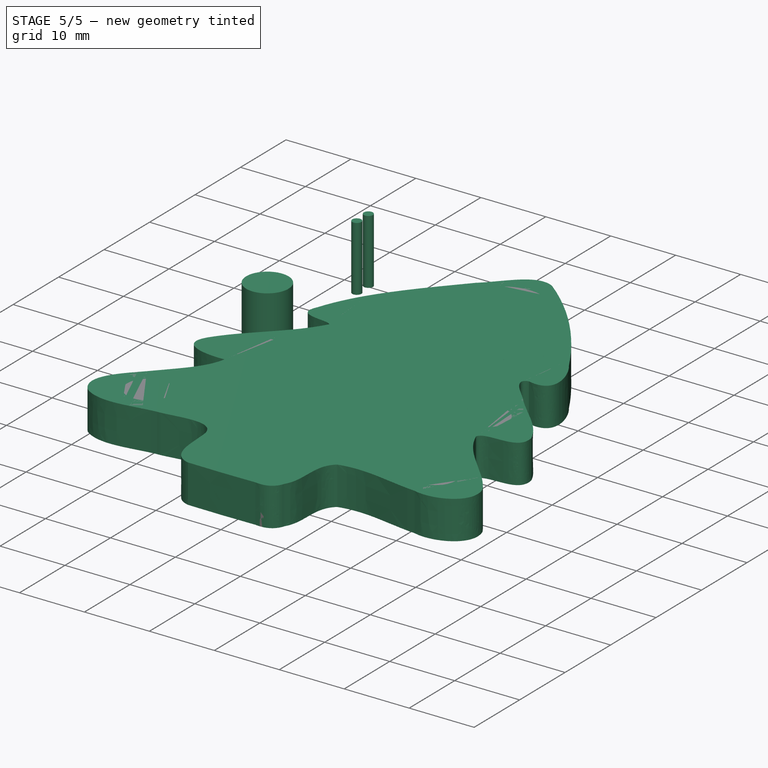
[diagram: stage 5 of 5 — iso view after this stage's code; geometry added in this stage tinted green]
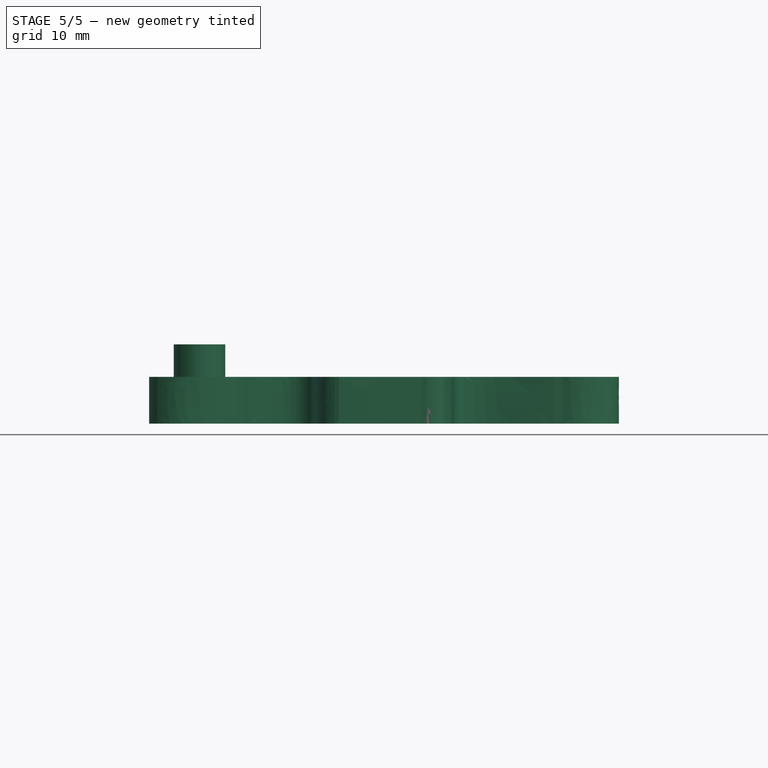
[diagram: stage 5 of 5 — front view after this stage's code; geometry added in this stage tinted green]
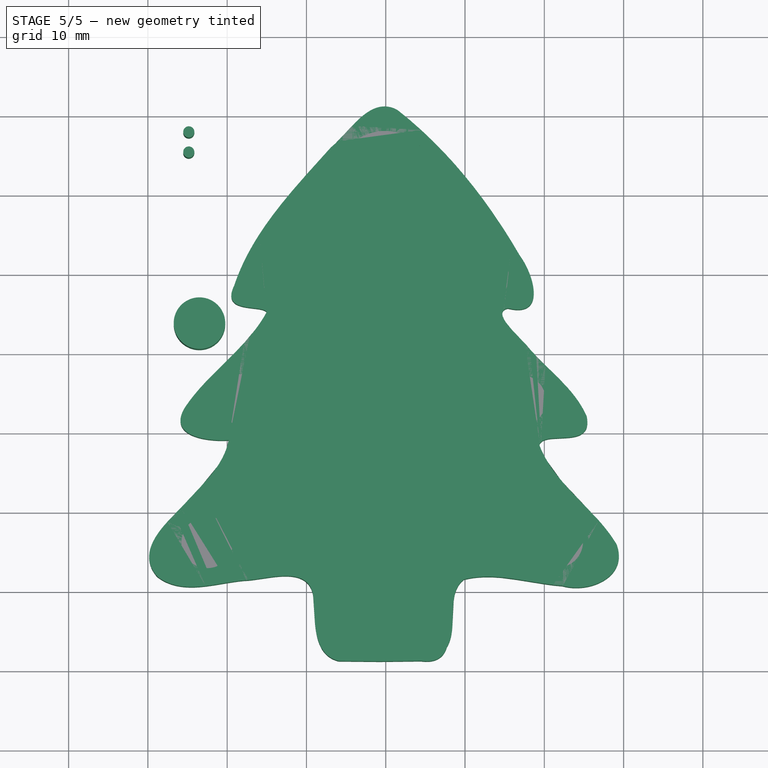
[diagram: stage 5 of 5 — top view after this stage's code; geometry added in this stage tinted green]
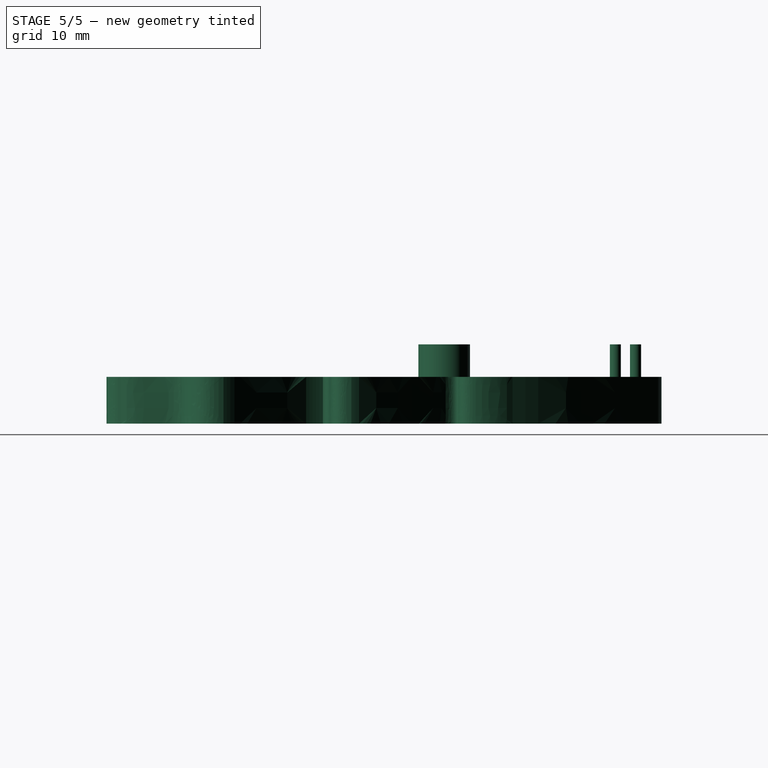
[diagram: stage 5 of 5 — right view after this stage's code; geometry added in this stage tinted green]
FEATURE [Part::Feature] path3347001
  shape: bbox 60.51 x 70.78 x 2e-07 mm, 0 faces, 0 solids (baked)
FEATURE [Part::Extrusion] Extrude
  Base = -> path3347001
  Dir = (0,0,5.9)
  Solid = true
FEATURE [Part::Extrusion] Extrude001  label="Tree_Base"
  Base = -> path3347001
  Dir = (0,0,5.9)
  Solid = true
FEATURE [Part::Extrusion] Extrude022
  Base = -> Sketch
  Dir = (0,0,10)
  Solid = true
FEATURE [Part::Extrusion] Extrude023
  Base = -> Sketch
  Dir = (0,0,10)
  Solid = true
FEATURE [Part::MultiFuse] Fusion010  label="Led_base"
  Shapes = -> [Extrude022,Extrude023]
FEATURE [Sketcher::SketchObject] Sketch011  label="Hole_Sketch"
  Placement = pos=(-24,0,0) rot=(0,0,1;0rad)
  sketch-geometry (3):
    g0: Circle CenterX=29.1596 CenterY=67.9117 CenterZ=0 NormalX=0 NormalY=0 NormalZ=1 Radius=0.7
    g1: Circle CenterX=29.1596 CenterY=65.3717 CenterZ=0 NormalX=0 NormalY=0 NormalZ=1 Radius=0.7
    g2: LineSegment [constr] StartX=29.1596 StartY=68.4121 StartZ=0 EndX=29.1596 EndY=65.287 EndZ=0
  constraints (6):
    c: Radius(g0) = 0.7
    c: Equal(g0,g1)
    c: Vertical(g2)
    c: DistanceY(g1,g0) = 2.54
    c: PointOnObject(g0,g2)
    c: PointOnObject(g1,g2)
FEATURE [Part::Extrusion] Extrude024  label="Hole_base"
  Base = -> Sketch011
  Dir = (0,0,10)
  Solid = true
FEATURE [Part::MultiFuse] Fusion011  label="Leds_All"
  Placement = pos=(0,0,3.4) rot=(0,0,1;0rad)
  Shapes = -> [Fusion,Fusion001,Fusion002,Fusion003,Fusion004,Fusion005,Fusion006,Fusion007,Fusion008,Fusion009]
FEATURE [Part::Cut] Cut  label="Tree_Leds_Cut"
  Base = -> Extrude001
  Tool = -> Fusion011
FEATURE [Part::Cut] Cut001  label="Tree_Holes"
  Base = -> Cut
  Tool = -> Fusion012
FEATURE [Part::Cut] Cut002
  Base = -> Cut001
  Tool = -> Pad
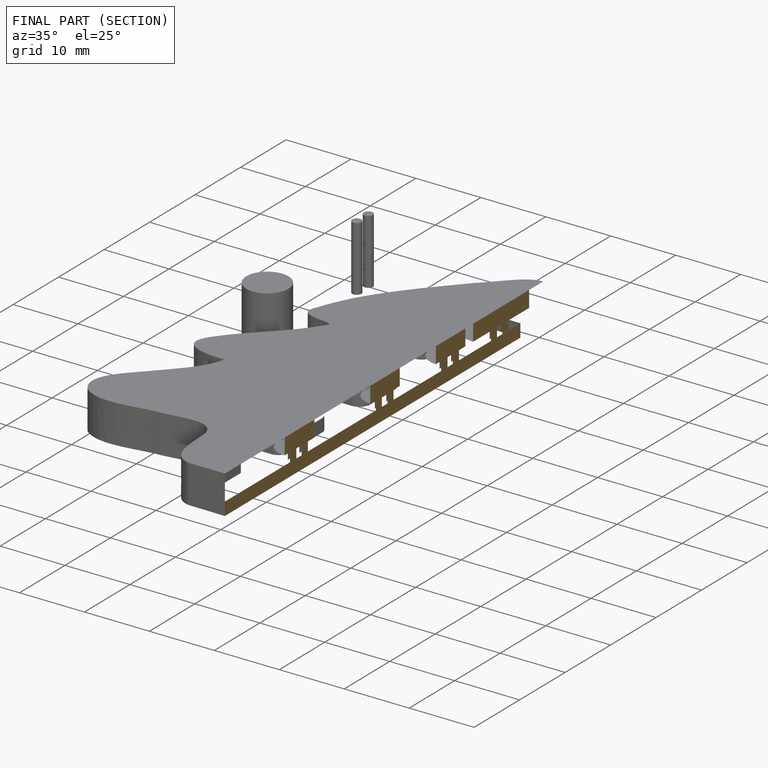
[diagram: finished part — half-section view (interior)]
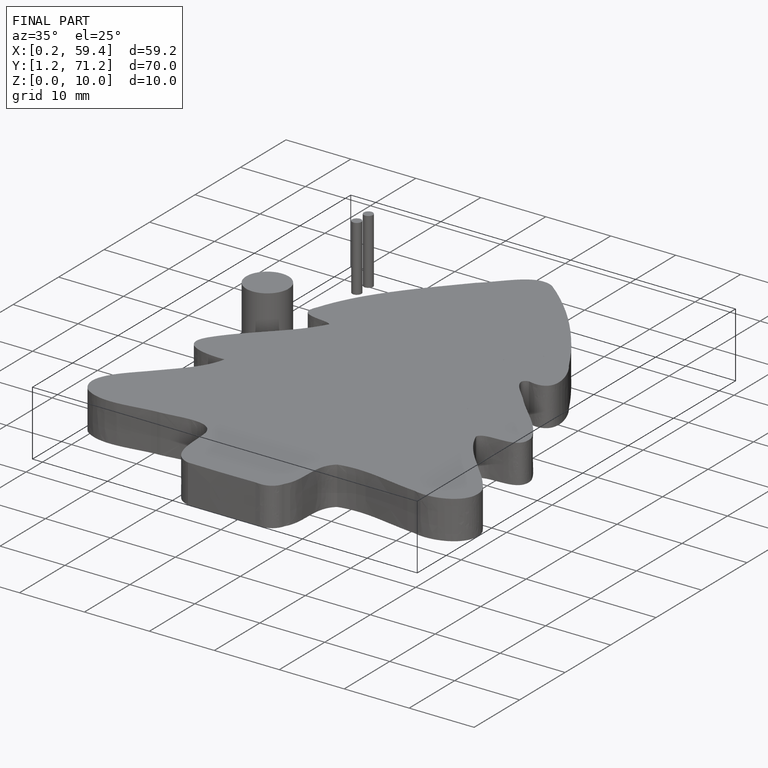
[diagram: finished part — iso view with bounding-box wireframe]
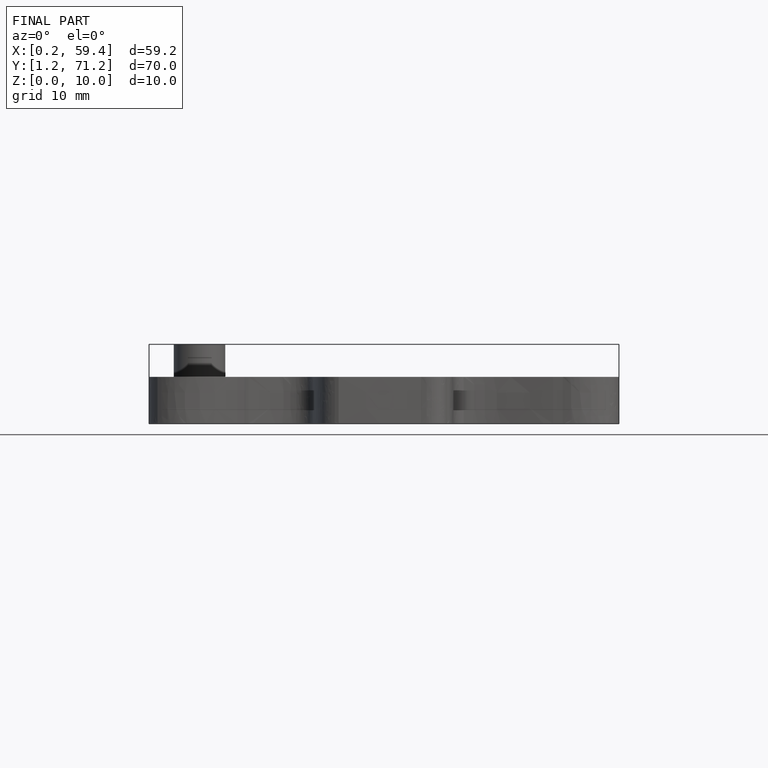
[diagram: finished part — front view with bounding-box wireframe]
